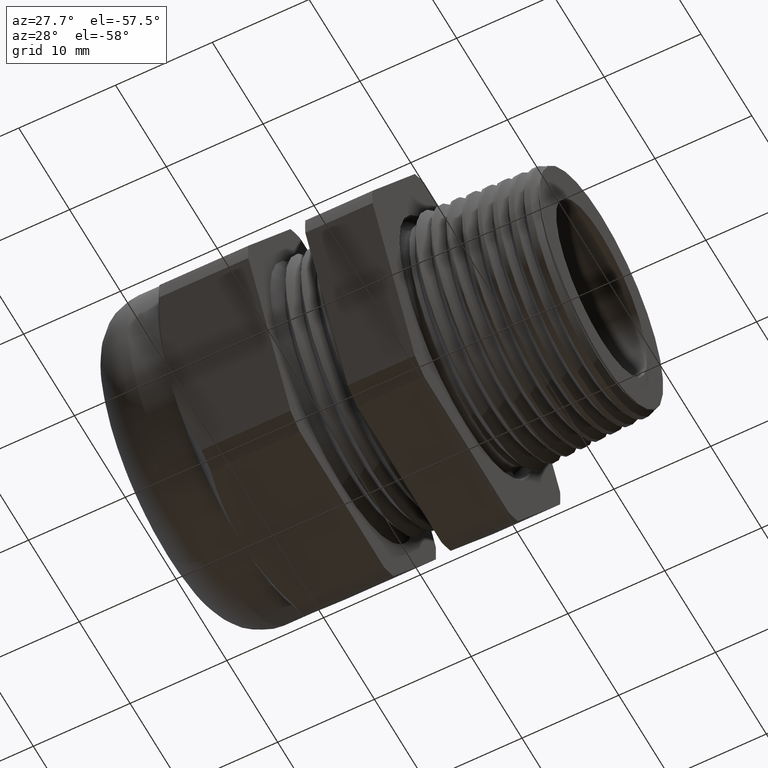
[diagram: clean part render]
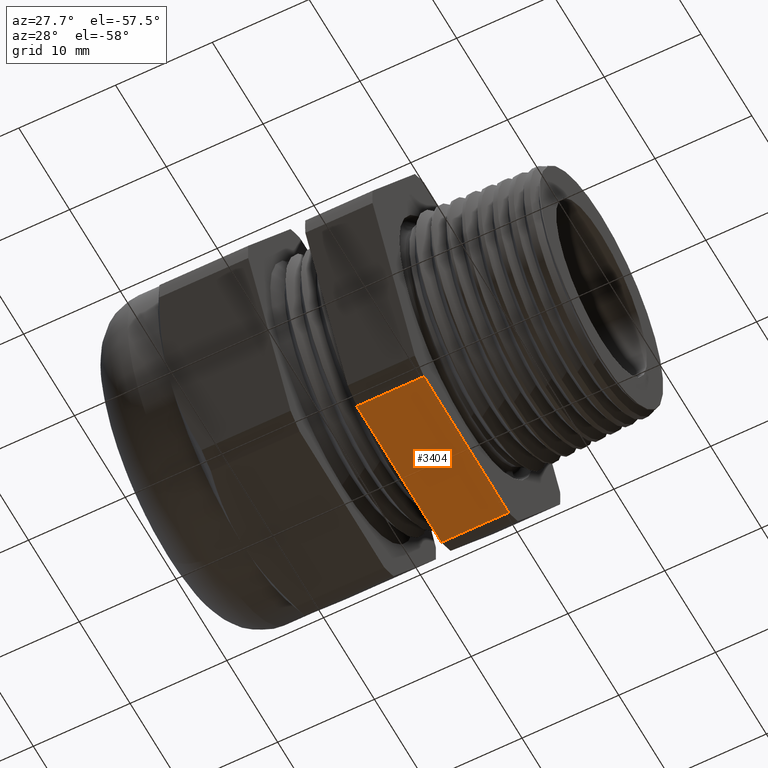
[diagram: same view with one face highlighted and labeled with its STEP entity id]
A machine part, auxiliary view. The second image highlights one B-rep face of the part: STEP entity #3404.
In plain terms, the highlighted planar face has unit normal (0, 0, -1).
Its self-contained STEP definition (entity closure, byte-faithful):
#120 = VERTEX_POINT ( 'NONE', #1167 ) ;
#311 = EDGE_CURVE ( 'NONE', #120, #3669, #1496, .T. ) ;
#918 = VERTEX_POINT ( 'NONE', #2164 ) ;
#919 = EDGE_CURVE ( 'NONE', #924, #918, #2163, .T. ) ;
#924 = VERTEX_POINT ( 'NONE', #2152 ) ;
#1167 = CARTESIAN_POINT ( 'NONE',  ( -0.2736318407960199300, -0.3278475255358810300, -0.6500000000000000200 ) ) ;
#1493 = DIRECTION ( 'NONE',  ( 0.0000000000000000000, 1.000000000000000000, 0.0000000000000000000 ) ) ;
#1494 = VECTOR ( 'NONE', #1493, 39.37007874015748100 ) ;
#1495 = CARTESIAN_POINT ( 'NONE',  ( -0.2736318407960199300, 0.5565000000000001100, -0.6500000000000000200 ) ) ;
#1496 = LINE ( 'NONE', #1495, #1494 ) ;
#2152 = CARTESIAN_POINT ( 'NONE',  ( 0.0000000000000000000, -0.3278475255358812000, -0.6499999999999999100 ) ) ;
#2160 = DIRECTION ( 'NONE',  ( 0.0000000000000000000, 1.000000000000000000, 0.0000000000000000000 ) ) ;
#2161 = VECTOR ( 'NONE', #2160, 39.37007874015748100 ) ;
#2162 = CARTESIAN_POINT ( 'NONE',  ( 0.0000000000000000000, -0.3278475255358810900, -0.6500000000000000200 ) ) ;
#2163 = LINE ( 'NONE', #2162, #2161 ) ;
#2164 = CARTESIAN_POINT ( 'NONE',  ( 0.0000000000000000000, 0.3278475255358810900, -0.6500000000000000200 ) ) ;
#2710 = DIRECTION ( 'NONE',  ( -1.000000000000000000, 0.0000000000000000000, 0.0000000000000000000 ) ) ;
#2711 = DIRECTION ( 'NONE',  ( 0.0000000000000000000, 0.0000000000000000000, -1.000000000000000000 ) ) ;
#2712 = CARTESIAN_POINT ( 'NONE',  ( -2.992185896283379200, -0.3278475255358810900, -0.6500000000000000200 ) ) ;
#2713 = AXIS2_PLACEMENT_3D ( 'NONE', #2712, #2711, #2710 ) ;
#2714 = FACE_OUTER_BOUND ( 'NONE', #3407, .T. ) ;
#2719 = PLANE ( 'NONE',  #2713 ) ;
#3104 = DIRECTION ( 'NONE',  ( 1.000000000000000000, 0.0000000000000000000, 0.0000000000000000000 ) ) ;
#3105 = VECTOR ( 'NONE', #3104, 39.37007874015748100 ) ;
#3106 = CARTESIAN_POINT ( 'NONE',  ( -2.992185896283379200, -0.3278475255358812000, -0.6499999999999999100 ) ) ;
#3107 = LINE ( 'NONE', #3106, #3105 ) ;
#3114 = CARTESIAN_POINT ( 'NONE',  ( -0.2736318407960202100, 0.3278475255358810900, -0.6500000000000000200 ) ) ;
#3115 = DIRECTION ( 'NONE',  ( 1.000000000000000000, 0.0000000000000000000, 0.0000000000000000000 ) ) ;
#3116 = VECTOR ( 'NONE', #3115, 39.37007874015748100 ) ;
#3117 = CARTESIAN_POINT ( 'NONE',  ( -2.992185896283379200, 0.3278475255358810900, -0.6500000000000000200 ) ) ;
#3118 = LINE ( 'NONE', #3117, #3116 ) ;
#3404 = ADVANCED_FACE ( 'NONE', ( #2714 ), #2719, .T. ) ;
#3407 = EDGE_LOOP ( 'NONE', ( #3454, #3455, #3453, #3452 ) ) ;
#3452 = ORIENTED_EDGE ( 'NONE', *, *, #3677, .F. ) ;
#3453 = ORIENTED_EDGE ( 'NONE', *, *, #919, .F. ) ;
#3454 = ORIENTED_EDGE ( 'NONE', *, *, #311, .T. ) ;
#3455 = ORIENTED_EDGE ( 'NONE', *, *, #3668, .T. ) ;
#3668 = EDGE_CURVE ( 'NONE', #3669, #918, #3118, .T. ) ;
#3669 = VERTEX_POINT ( 'NONE', #3114 ) ;
#3677 = EDGE_CURVE ( 'NONE', #120, #924, #3107, .T. ) ;